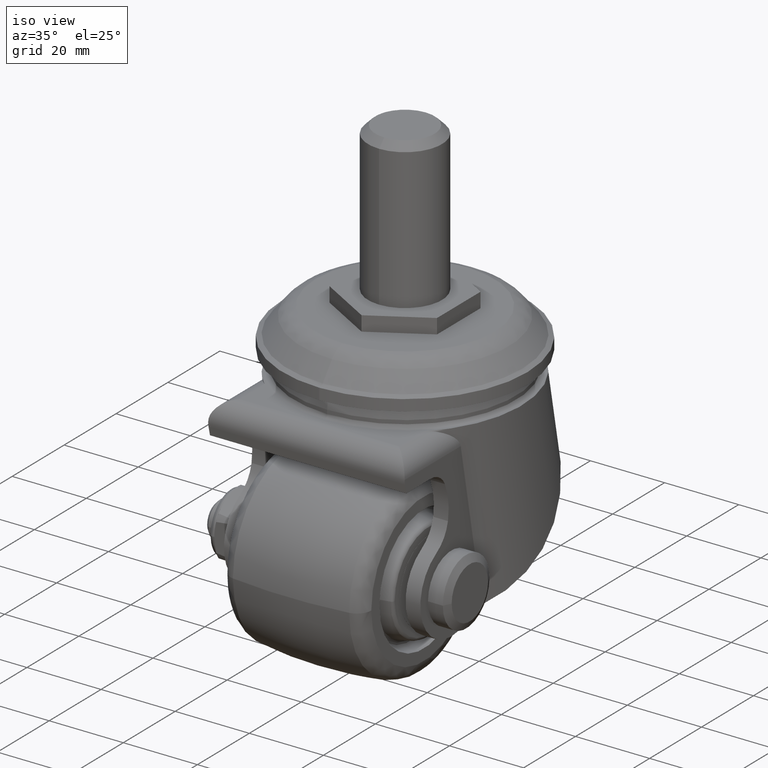
[diagram: clean part render]
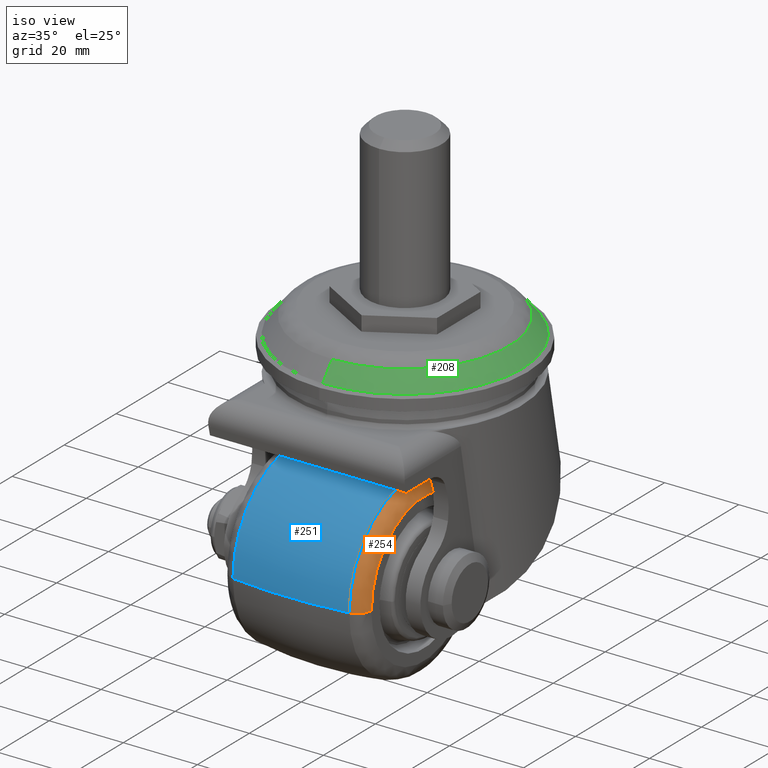
[diagram: same view with three faces highlighted in distinct colors, each labeled with its STEP entity id]
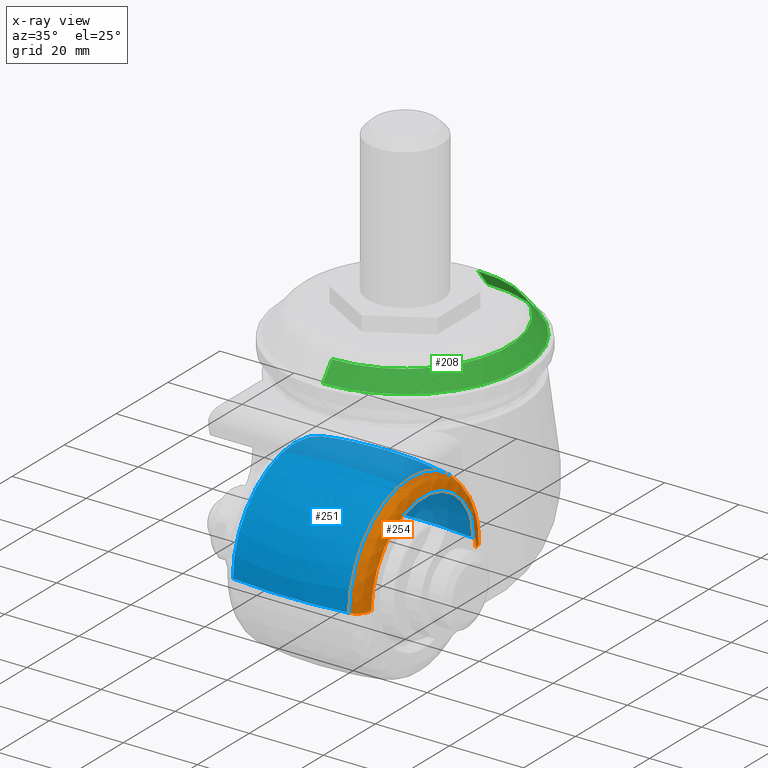
[diagram: x-ray of the same camera — body ghosted, the three highlighted faces saturated]
A machine part, iso view with three faces highlighted in distinct colors.
The next image is the same camera in x-ray (body ghosted, the three faces saturated) — at least one of them is partly hidden behind the body in this view.
Their STEP definitions:

[orange] entity #254 — the highlighted face is a freeform B-spline surface patch.
#254=ADVANCED_FACE('',(#1728),#1727,.T.);
#1727=( BOUNDED_SURFACE() B_SPLINE_SURFACE( 2,2,((#3318,#3319,#3320,#3321,#3322),(#3323,#3324,#3325,#3326,#3327),(#3328,#3329,#3330,#3331,#3332),(#3333,#3334,#3335,#3336,#3337),(#3338,#3339,#3340,#3341,#3342)), .UNSPECIFIED.,.F.,.F.,.F.) B_SPLINE_SURFACE_WITH_KNOTS((3,2,3),(3,2,3),(0.00000000000E+00,5.00000000000E-01,1.00000000000E+00),(0.00000000000E+00,5.00000000000E-01,1.00000000000E+00), .UNSPECIFIED. ) GEOMETRIC_REPRESENTATION_ITEM() RATIONAL_B_SPLINE_SURFACE(((1.00000000000E+00,7.53612007254E-01,1.00000000000E+00,7.53612007254E-01,1.00000000000E+00),(7.07106781187E-01,5.32884160713E-01,7.07106781187E-01,5.32884160713E-01,7.07106781187E-01),(1.00000000000E+00,7.53612007254E-01,1.00000000000E+00,7.53612007254E-01,1.00000000000E+00),(7.07106781187E-01,5.32884160713E-01,7.07106781187E-01,5.32884160713E-01,7.07106781187E-01),(1.00000000000E+00,7.53612007254E-01,1.00000000000E+00,7.53612007254E-01,1.00000000000E+00))) REPRESENTATION_ITEM('') SURFACE() );
#1728=FACE_OUTER_BOUND('',#3343,.T.);
#3318=CARTESIAN_POINT('',(1.56763926169E+01,-9.67861737715E-20,-2.39301263691E+01));
#3319=CARTESIAN_POINT('',(1.90000000000E+01,-9.49427631513E-20,-2.34743479519E+01));
#3320=CARTESIAN_POINT('',(1.90000000000E+01,-8.13745169865E-20,-2.01196348490E+01));
#3321=CARTESIAN_POINT('',(1.90000000000E+01,-6.78062708218E-20,-1.67649217461E+01));
#3322=CARTESIAN_POINT('',(1.56763926169E+01,-6.59628602016E-20,-1.63091433289E+01));
#3323=CARTESIAN_POINT('',(1.56763926169E+01,2.39301263691E+01,-2.39301263691E+01));
#3324=CARTESIAN_POINT('',(1.90000000000E+01,2.34743479519E+01,-2.34743479519E+01));
#3325=CARTESIAN_POINT('',(1.90000000000E+01,2.01196348490E+01,-2.01196348490E+01));
#3326=CARTESIAN_POINT('',(1.90000000000E+01,1.67649217461E+01,-1.67649217461E+01));
#3327=CARTESIAN_POINT('',(1.56763926169E+01,1.63091433289E+01,-1.63091433289E+01));
#3328=CARTESIAN_POINT('',(1.56763926169E+01,2.39301263691E+01,-1.46539441923E-15));
#3329=CARTESIAN_POINT('',(1.90000000000E+01,2.34743479519E+01,-1.43748419683E-15));
#3330=CARTESIAN_POINT('',(1.90000000000E+01,2.01196348490E+01,-1.23205369541E-15));
#3331=CARTESIAN_POINT('',(1.90000000000E+01,1.67649217461E+01,-1.02662319399E-15));
#3332=CARTESIAN_POINT('',(1.56763926169E+01,1.63091433289E+01,-9.98712971588E-16));
#3333=CARTESIAN_POINT('',(1.56763926169E+01,2.39301263691E+01,2.39301263691E+01));
#3334=CARTESIAN_POINT('',(1.90000000000E+01,2.34743479519E+01,2.34743479519E+01));
#3335=CARTESIAN_POINT('',(1.90000000000E+01,2.01196348490E+01,2.01196348490E+01));
#3336=CARTESIAN_POINT('',(1.90000000000E+01,1.67649217461E+01,1.67649217461E+01));
#3337=CARTESIAN_POINT('',(1.56763926169E+01,1.63091433289E+01,1.63091433289E+01));
#3338=CARTESIAN_POINT('',(1.56763926169E+01,2.93069205229E-15,2.39301263691E+01));
#3339=CARTESIAN_POINT('',(1.90000000000E+01,2.87487345090E-15,2.34743479519E+01));
#3340=CARTESIAN_POINT('',(1.90000000000E+01,2.46402601630E-15,2.01196348490E+01));
#3341=CARTESIAN_POINT('',(1.90000000000E+01,2.05317858170E-15,1.67649217461E+01));
#3342=CARTESIAN_POINT('',(1.56763926169E+01,1.99735998032E-15,1.63091433289E+01));
#3343=EDGE_LOOP('',(#4324,#4325,#4326,#4327));
#4324=ORIENTED_EDGE('',*,*,#4772,.T.);
#4325=ORIENTED_EDGE('',*,*,#4775,.T.);
#4326=ORIENTED_EDGE('',*,*,#4703,.F.);
#4327=ORIENTED_EDGE('',*,*,#4776,.F.);
#4703=EDGE_CURVE('',#6569,#6570,#6571,.T.);
#4772=EDGE_CURVE('',#7028,#7021,#7029,.T.);
#4775=EDGE_CURVE('',#7021,#6570,#7047,.T.);
#4776=EDGE_CURVE('',#7028,#6569,#7053,.T.);
#6569=VERTEX_POINT('',#8795);
#6570=VERTEX_POINT('',#8796);
#6571=CIRCLE('',#8800,2.01196348490E+01);
#7021=VERTEX_POINT('',#9075);
#7028=VERTEX_POINT('',#9079);
#7029=CIRCLE('',#9083,2.39301263691E+01);
#7047=(BOUNDED_CURVE() B_SPLINE_CURVE(2,(#9091,#9092,#9093),.UNSPECIFIED.,.F.,.F.) B_SPLINE_CURVE_WITH_KNOTS((3,3),(0.00000000000E+00,5.00000000000E-01),.UNSPECIFIED.) CURVE() GEOMETRIC_REPRESENTATION_ITEM() RATIONAL_B_SPLINE_CURVE((1.00000000000E+00,7.53612007254E-01,1.00000000000E+00)) REPRESENTATION_ITEM('') );
#7053=(BOUNDED_CURVE() B_SPLINE_CURVE(3,(#9094,#9095,#9096,#9097,#9098),.UNSPECIFIED.,.F.,.F.) B_SPLINE_CURVE_WITH_KNOTS((4,1,4),(0.00000000000E+00,2.50000000210E-01,5.00000000373E-01),.UNSPECIFIED.) CURVE() GEOMETRIC_REPRESENTATION_ITEM() RATIONAL_B_SPLINE_CURVE((1.00000000000E+00,1.00000000000E+00,1.00000000000E+00,1.00000000000E+00,1.00000000000E+00)) REPRESENTATION_ITEM('') );
#8795=CARTESIAN_POINT('',(1.90000000000E+01,0.00000000000E+00,-2.01196348490E+01));
#8796=CARTESIAN_POINT('',(1.90000000000E+01,0.00000000000E+00,2.01196348490E+01));
#8797=CARTESIAN_POINT('',(1.90000000000E+01,0.00000000000E+00,0.00000000000E+00));
#8798=DIRECTION('',(1.00000000000E+00,0.00000000000E+00,0.00000000000E+00));
#8799=DIRECTION('',(0.00000000000E+00,-1.22460635382E-16,-1.00000000000E+00));
#8800=AXIS2_PLACEMENT_3D('',#8797,#8798,#8799);
#9075=CARTESIAN_POINT('',(1.56763926169E+01,-1.18423789293E-15,2.39301263691E+01));
#9079=CARTESIAN_POINT('',(1.56763926169E+01,0.00000000000E+00,-2.39301263691E+01));
#9080=CARTESIAN_POINT('',(1.56763926169E+01,0.00000000000E+00,0.00000000000E+00));
#9081=DIRECTION('',(1.00000000000E+00,0.00000000000E+00,0.00000000000E+00));
#9082=DIRECTION('',(0.00000000000E+00,-1.22460635382E-16,-1.00000000000E+00));
#9083=AXIS2_PLACEMENT_3D('',#9080,#9081,#9082);
#9091=CARTESIAN_POINT('',(1.56763926169E+01,-2.93049847994E-15,2.39301263691E+01));
#9092=CARTESIAN_POINT('',(1.90000000000E+01,-2.87468356537E-15,2.34743479519E+01));
#9093=CARTESIAN_POINT('',(1.90000000000E+01,-2.46386326727E-15,2.01196348490E+01));
#9094=CARTESIAN_POINT('',(1.56763926169E+01,3.55271367880E-15,-2.39301263691E+01));
#9095=CARTESIAN_POINT('',(1.65812189860E+01,3.65569769556E-15,-2.38120094283E+01));
#9096=CARTESIAN_POINT('',(1.83111432352E+01,3.77275099653E-15,-2.28735096012E+01));
#9097=CARTESIAN_POINT('',(1.90059098934E+01,3.65569769619E-15,-2.10321190603E+01));
#9098=CARTESIAN_POINT('',(1.90000000000E+01,3.55271367657E-15,-2.01196348452E+01));

[blue] entity #251 — the highlighted face is a freeform B-spline surface patch.
#251=ADVANCED_FACE('',(#1698),#1697,.T.);
#1697=( BOUNDED_SURFACE() B_SPLINE_SURFACE( 2,2,((#3260,#3261,#3262,#3263,#3264),(#3265,#3266,#3267,#3268,#3269),(#3270,#3271,#3272,#3273,#3274)), .UNSPECIFIED.,.F.,.F.,.F.) B_SPLINE_SURFACE_WITH_KNOTS((3,3),(3,2,3),(-1.36283562937E-01,1.36283547999E-01),(0.00000000000E+00,1.57079632679E+00,3.14159265359E+00), .UNSPECIFIED. ) GEOMETRIC_REPRESENTATION_ITEM() RATIONAL_B_SPLINE_SURFACE(((1.00000000000E+00,7.07106781187E-01,1.00000000000E+00,7.07106781187E-01,1.00000000000E+00),(9.90727760860E-01,7.00550318014E-01,9.90727760860E-01,7.00550318014E-01,9.90727760860E-01),(1.00000000000E+00,7.07106781187E-01,1.00000000000E+00,7.07106781187E-01,1.00000000000E+00))) REPRESENTATION_ITEM('') SURFACE() );
#1698=FACE_OUTER_BOUND('',#3275,.T.);
#3260=CARTESIAN_POINT('',(-1.56763943245E+01,2.93049845126E-15,2.39301261349E+01));
#3261=CARTESIAN_POINT('',(-1.56763943245E+01,2.39301261349E+01,2.39301261349E+01));
#3262=CARTESIAN_POINT('',(-1.56763943245E+01,2.39301261349E+01,-2.93049845126E-15));
#3263=CARTESIAN_POINT('',(-1.56763943245E+01,2.39301261349E+01,-2.39301261349E+01));
#3264=CARTESIAN_POINT('',(-1.56763943245E+01,-2.93049845126E-15,-2.39301261349E+01));
#3265=CARTESIAN_POINT('',(-8.69883138854E-07,3.19375949792E-15,2.60798867158E+01));
#3266=CARTESIAN_POINT('',(-8.69883138854E-07,2.60798867158E+01,2.60798867158E+01));
#3267=CARTESIAN_POINT('',(-8.69883138854E-07,2.60798867158E+01,-3.19375949792E-15));
#3268=CARTESIAN_POINT('',(-8.69883138854E-07,2.60798867158E+01,-2.60798867158E+01));
#3269=CARTESIAN_POINT('',(-8.69883138854E-07,-3.19375949792E-15,-2.60798867158E+01));
#3270=CARTESIAN_POINT('',(1.56763926169E+01,2.93049847994E-15,2.39301263691E+01));
#3271=CARTESIAN_POINT('',(1.56763926169E+01,2.39301263691E+01,2.39301263691E+01));
#3272=CARTESIAN_POINT('',(1.56763926169E+01,2.39301263691E+01,-2.93049847994E-15));
#3273=CARTESIAN_POINT('',(1.56763926169E+01,2.39301263691E+01,-2.39301263691E+01));
#3274=CARTESIAN_POINT('',(1.56763926169E+01,-2.93049847994E-15,-2.39301263691E+01));
#3275=EDGE_LOOP('',(#4312,#4313,#4314,#4315));
#4312=ORIENTED_EDGE('',*,*,#4770,.T.);
#4313=ORIENTED_EDGE('',*,*,#4771,.T.);
#4314=ORIENTED_EDGE('',*,*,#4772,.F.);
#4315=ORIENTED_EDGE('',*,*,#4773,.F.);
#4770=EDGE_CURVE('',#6996,#6995,#7015,.T.);
#4771=EDGE_CURVE('',#6995,#7021,#7022,.T.);
#4772=EDGE_CURVE('',#7028,#7021,#7029,.T.);
#4773=EDGE_CURVE('',#6996,#7028,#7035,.T.);
#6995=VERTEX_POINT('',#9057);
#6996=VERTEX_POINT('',#9058);
#7015=CIRCLE('',#9074,2.39301261349E+01);
#7021=VERTEX_POINT('',#9075);
#7022=(BOUNDED_CURVE() B_SPLINE_CURVE(2,(#9076,#9077,#9078),.UNSPECIFIED.,.F.,.F.) B_SPLINE_CURVE_WITH_KNOTS((3,3),(-1.36283562937E-01,1.36283547999E-01),.UNSPECIFIED.) CURVE() GEOMETRIC_REPRESENTATION_ITEM() RATIONAL_B_SPLINE_CURVE((1.00000000000E+00,9.90727760860E-01,1.00000000000E+00)) REPRESENTATION_ITEM('') );
#7028=VERTEX_POINT('',#9079);
#7029=CIRCLE('',#9083,2.39301263691E+01);
#7035=(BOUNDED_CURVE() B_SPLINE_CURVE(2,(#9084,#9085,#9086),.UNSPECIFIED.,.F.,.F.) B_SPLINE_CURVE_WITH_KNOTS((3,3),(-1.36283562937E-01,1.36283547999E-01),.UNSPECIFIED.) CURVE() GEOMETRIC_REPRESENTATION_ITEM() RATIONAL_B_SPLINE_CURVE((1.00000000000E+00,9.90727760860E-01,1.00000000000E+00)) REPRESENTATION_ITEM('') );
#9057=CARTESIAN_POINT('',(-1.56763943245E+01,-1.18423789293E-15,2.39301261349E+01));
#9058=CARTESIAN_POINT('',(-1.56763943245E+01,0.00000000000E+00,-2.39301261349E+01));
#9071=CARTESIAN_POINT('',(-1.56763943245E+01,0.00000000000E+00,0.00000000000E+00));
#9072=DIRECTION('',(1.00000000000E+00,0.00000000000E+00,0.00000000000E+00));
#9073=DIRECTION('',(0.00000000000E+00,-1.22460635382E-16,-1.00000000000E+00));
#9074=AXIS2_PLACEMENT_3D('',#9071,#9072,#9073);
#9075=CARTESIAN_POINT('',(1.56763926169E+01,-1.18423789293E-15,2.39301263691E+01));
#9076=CARTESIAN_POINT('',(-1.56763943245E+01,2.93049845126E-15,2.39301261349E+01));
#9077=CARTESIAN_POINT('',(-8.69883138854E-07,3.19375949792E-15,2.60798867158E+01));
#9078=CARTESIAN_POINT('',(1.56763926169E+01,2.93049847994E-15,2.39301263691E+01));
#9079=CARTESIAN_POINT('',(1.56763926169E+01,0.00000000000E+00,-2.39301263691E+01));
#9080=CARTESIAN_POINT('',(1.56763926169E+01,0.00000000000E+00,0.00000000000E+00));
#9081=DIRECTION('',(1.00000000000E+00,0.00000000000E+00,0.00000000000E+00));
#9082=DIRECTION('',(0.00000000000E+00,-1.22460635382E-16,-1.00000000000E+00));
#9083=AXIS2_PLACEMENT_3D('',#9080,#9081,#9082);
#9084=CARTESIAN_POINT('',(-1.56763943245E+01,-2.93049845126E-15,-2.39301261349E+01));
#9085=CARTESIAN_POINT('',(-8.69883138854E-07,-3.19375949792E-15,-2.60798867158E+01));
#9086=CARTESIAN_POINT('',(1.56763926169E+01,-2.93049847994E-15,-2.39301263691E+01));

[green] entity #208 — the highlighted face is a freeform B-spline surface patch.
#208=ADVANCED_FACE('',(#1254),#1253,.T.);
#1253=( BOUNDED_SURFACE() B_SPLINE_SURFACE( 2,1,((#2787,#2788),(#2789,#2790),(#2791,#2792),(#2793,#2794),(#2795,#2796)), .UNSPECIFIED.,.F.,.F.,.F.) B_SPLINE_SURFACE_WITH_KNOTS((3,2,3),(2,2),(0.00000000000E+00,5.00000000000E-01,1.00000000000E+00),(0.00000000000E+00,1.00000000000E+00), .UNSPECIFIED. ) GEOMETRIC_REPRESENTATION_ITEM() RATIONAL_B_SPLINE_SURFACE(((1.00000000000E+00,1.00000000000E+00),(7.07106781187E-01,7.07106781187E-01),(1.00000000000E+00,1.00000000000E+00),(7.07106781187E-01,7.07106781187E-01),(1.00000000000E+00,1.00000000000E+00))) REPRESENTATION_ITEM('') SURFACE() );
#1254=FACE_OUTER_BOUND('',#2797,.T.);
#2787=CARTESIAN_POINT('',(3.44642986665E-15,-2.39291764773E+00,-2.81422878930E+01));
#2788=CARTESIAN_POINT('',(3.88359154468E-15,-6.91740064773E+00,-3.17119838930E+01));
#2789=CARTESIAN_POINT('',(2.81422355331E+01,-2.39291764773E+00,-2.81422878930E+01));
#2790=CARTESIAN_POINT('',(3.17119315331E+01,-6.91740064773E+00,-3.17119838930E+01));
#2791=CARTESIAN_POINT('',(2.81422355331E+01,-2.39291764773E+00,-5.23598743723E-05));
#2792=CARTESIAN_POINT('',(3.17119315331E+01,-6.91740064773E+00,-5.23598743721E-05));
#2793=CARTESIAN_POINT('',(2.81422355331E+01,-2.39291764773E+00,2.81421831732E+01));
#2794=CARTESIAN_POINT('',(3.17119315331E+01,-6.91740064773E+00,3.17118791732E+01));
#2795=CARTESIAN_POINT('',(0.00000000000E+00,-2.39291764773E+00,2.81421831732E+01));
#2796=CARTESIAN_POINT('',(0.00000000000E+00,-6.91740064773E+00,3.17118791732E+01));
#2797=EDGE_LOOP('',(#4140,#4141,#4142,#4143));
#4140=ORIENTED_EDGE('',*,*,#4670,.F.);
#4141=ORIENTED_EDGE('',*,*,#4672,.T.);
#4142=ORIENTED_EDGE('',*,*,#4674,.T.);
#4143=ORIENTED_EDGE('',*,*,#4673,.F.);
#4670=EDGE_CURVE('',#6332,#6325,#6345,.T.);
#4672=EDGE_CURVE('',#6332,#6352,#6359,.T.);
#4673=EDGE_CURVE('',#6325,#6351,#6365,.T.);
#4674=EDGE_CURVE('',#6352,#6351,#6371,.T.);
#6325=VERTEX_POINT('',#8635);
#6332=VERTEX_POINT('',#8639);
#6345=CIRCLE('',#8650,2.81422355331E+01);
#6351=VERTEX_POINT('',#8651);
#6352=VERTEX_POINT('',#8652);
#6359=(BOUNDED_CURVE() B_SPLINE_CURVE(1,(#8657,#8658),.UNSPECIFIED.,.F.,.F.) B_SPLINE_CURVE_WITH_KNOTS((2,2),(0.00000000000E+00,1.00000000000E+00),.UNSPECIFIED.) CURVE() GEOMETRIC_REPRESENTATION_ITEM() RATIONAL_B_SPLINE_CURVE((1.00000000000E+00,1.00000000000E+00)) REPRESENTATION_ITEM('') );
#6365=(BOUNDED_CURVE() B_SPLINE_CURVE(1,(#8659,#8660),.UNSPECIFIED.,.F.,.F.) B_SPLINE_CURVE_WITH_KNOTS((2,2),(0.00000000000E+00,1.00000000000E+00),.UNSPECIFIED.) CURVE() GEOMETRIC_REPRESENTATION_ITEM() RATIONAL_B_SPLINE_CURVE((7.50000000000E-01,7.50000000000E-01)) REPRESENTATION_ITEM('') );
#6371=CIRCLE('',#8664,3.17119315331E+01);
#8635=CARTESIAN_POINT('',(1.18423789293E-15,-2.39291764773E+00,-2.81422878930E+01));
#8639=CARTESIAN_POINT('',(0.00000000000E+00,-2.39291764773E+00,2.81421831732E+01));
#8647=CARTESIAN_POINT('',(0.00000000000E+00,-2.39291764773E+00,-5.23598743740E-05));
#8648=DIRECTION('',(0.00000000000E+00,1.00000000000E+00,-0.00000000000E+00));
#8649=DIRECTION('',(-1.22460635382E-16,0.00000000000E+00,1.00000000000E+00));
#8650=AXIS2_PLACEMENT_3D('',#8647,#8648,#8649);
#8651=CARTESIAN_POINT('',(3.55271367880E-15,-6.91740064773E+00,-3.17119838930E+01));
#8652=CARTESIAN_POINT('',(0.00000000000E+00,-6.91740064773E+00,3.17118791732E+01));
#8657=CARTESIAN_POINT('',(-6.89263208892E-15,-2.39291764773E+00,2.81421831732E+01));
#8658=CARTESIAN_POINT('',(-7.76692656948E-15,-6.91740064773E+00,3.17118791732E+01));
#8659=CARTESIAN_POINT('',(7.10542735760E-15,-2.39291764773E+00,-2.81422878930E+01));
#8660=CARTESIAN_POINT('',(8.28966525053E-15,-6.91740064773E+00,-3.17119838930E+01));
#8661=CARTESIAN_POINT('',(0.00000000000E+00,-6.91740064773E+00,-5.23598743740E-05));
#8662=DIRECTION('',(0.00000000000E+00,1.00000000000E+00,-0.00000000000E+00));
#8663=DIRECTION('',(-1.22460635382E-16,0.00000000000E+00,1.00000000000E+00));
#8664=AXIS2_PLACEMENT_3D('',#8661,#8662,#8663);